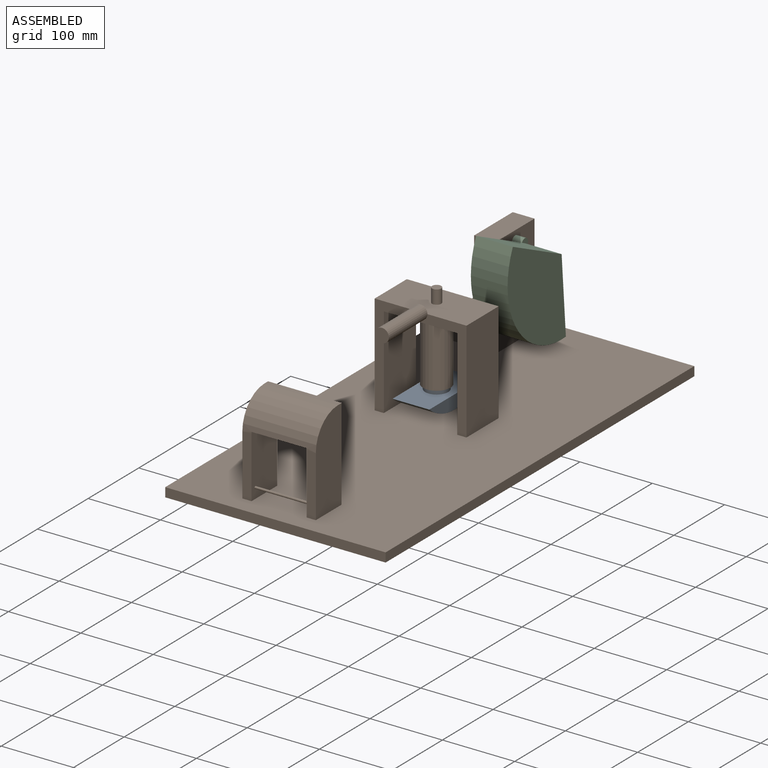
[diagram: assembled view]
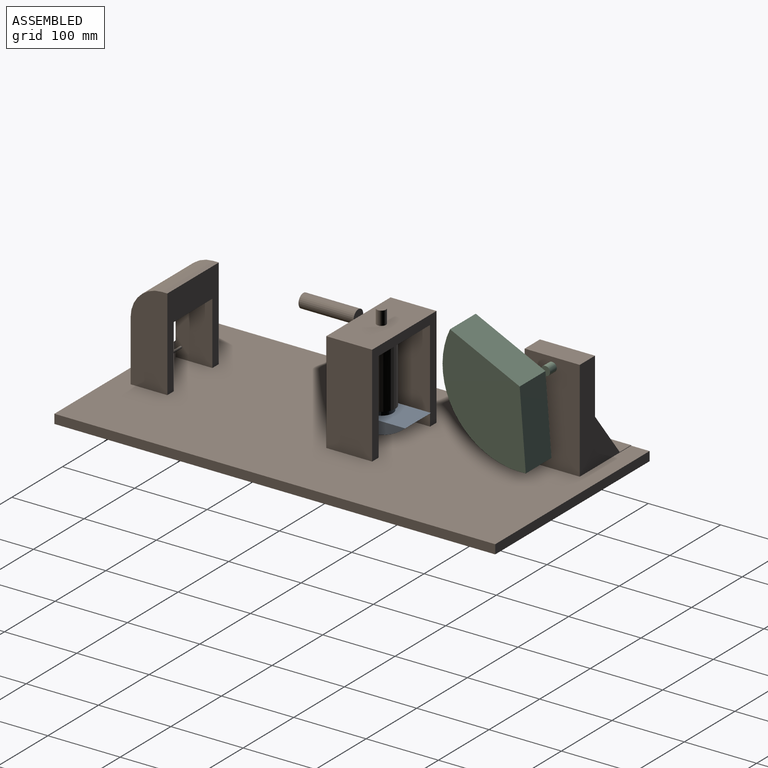
[diagram: assembled view, second angle]
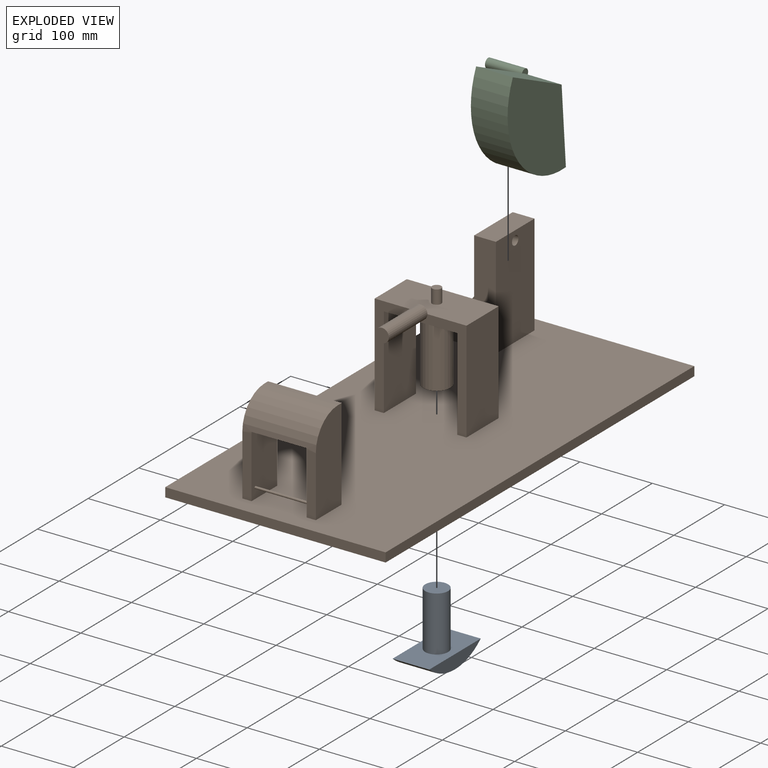
[diagram: exploded view]
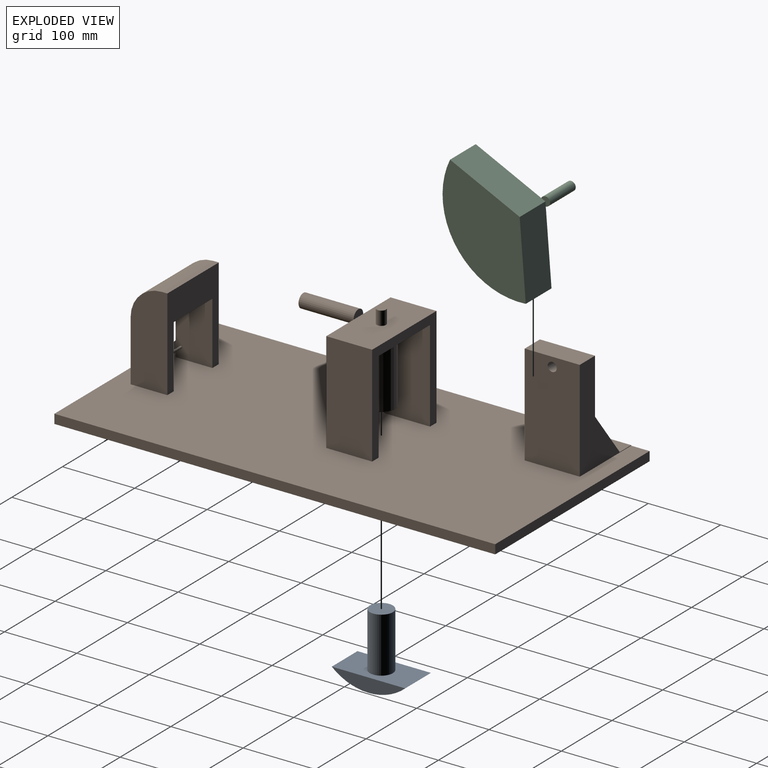
[diagram: exploded view, second angle]
ASSEMBLY  parts=3 mates=2
PART A: 6 faces, bbox 50.8x101.6x95.3 mm
  f0: cylinder r=15.88mm len=76.2mm, axis (0,0,-1), area 7600.6mm2, adj f1,f2
  f1: plane 31.75x31.75mm, normal (0,0,1), area 791.7mm2, adj f0
  f2: plane 101.6x50.8mm, normal (0,0,1), area 4369.5mm2, adj f0,f3,f4,f5
  f3: cylinder r=77.05mm len=101.6mm, axis (-1,0,0), area 5635.5mm2, adj f2,f4,f5
  f4: plane 101.6x19.12mm, normal (1,0,0), area 1330.8mm2, adj f2,f3
  f5: plane 101.6x19.12mm, normal (-1,0,0), area 1330.8mm2, adj f2,f3
PART B: 42 faces, bbox 304.8x609.6x171.5 mm
  f0: plane 139.7x127mm, normal (0,-1,0), area 4696.2mm2, adj f1,f16,f17,f18,f19,f21,f22,f39
  f1: plane 609.6x304.8mm, normal (0,0,1), area 175160.9mm2, adj f0,f2,f3,f5,f6,f7,f8,f9
  f2: plane 83.82x12.7mm, normal (0,-1,0), area 1064.5mm2, adj f1,f8,f9,f23
  f3: plane 609.6x13.35mm, normal (-1,0,0), area 7791.5mm2, adj f1,f4,f6,f7,f24,f25,f27
  f4: plane 609.6x304.8mm, normal (0,0,-1), area 185806.1mm2, adj f3,f5,f6,f7
  f5: plane 609.6x12.7mm, normal (1,0,0), area 7741.9mm2, adj f1,f4,f6,f7
  f6: plane 304.8x12.7mm, normal (0,1,0), area 3871mm2, adj f1,f3,f4,f5
  f7: plane 304.8x12.7mm, normal (0,-1,0), area 3871mm2, adj f1,f3,f4,f5
  f8: plane 86.53x50.8mm, normal (-1,0,0), area 4387.5mm2, adj f1,f2,f12,f14,f23,f41
  f9: plane 127x50.8mm, normal (1,0,0), area 6051.5mm2, adj f1,f2,f12,f15,f23
  f10: plane 127x50.8mm, normal (-1,0,0), area 6051.5mm2, adj f1,f12,f13,f15,f23
  f11: plane 86.53x50.8mm, normal (1,0,0), area 4387.5mm2, adj f1,f12,f13,f14,f23,f41
  f12: plane 127x101.6mm, normal (0,1,0), area 6309.9mm2, adj f1,f8,f9,f10,f11,f14,f15
  f13: plane 83.82x12.7mm, normal (0,-1,0), area 1064.5mm2, adj f1,f10,f11,f23
  f14: plane 76.2x50.72mm, normal (0,0,-1), area 3864.5mm2, adj f8,f11,f12,f23
  f15: plane 101.6x7.62mm, normal (0,0,1), area 774.2mm2, adj f9,f10,f12,f23
  f16: plane 139.7x63.5mm, normal (-1,0,0), area 8870.9mm2, adj f0,f1,f20,f22
  f17: plane 127x63.5mm, normal (1,0,0), area 8064.5mm2, adj f0,f1,f20,f21
  f18: plane 127x63.5mm, normal (-1,0,0), area 8064.5mm2, adj f0,f1,f20,f21
  f19: plane 139.7x63.5mm, normal (1,0,0), area 8870.9mm2, adj f0,f1,f20,f22
  f20: plane 139.7x127mm, normal (0,1,0), area 4838.7mm2, adj f1,f16,f17,f18,f19,f21,f22
  f21: plane 101.6x63.5mm, normal (0,0,-1), area 5311.5mm2, adj f0,f17,f18,f20,f33
  f22: plane 127x63.5mm, normal (0,0,1), area 7937.8mm2, adj f0,f16,f19,f20,f36,f38
  f23: cylinder r=43.18mm len=101.6mm, axis (-1,0,0), area 6684.9mm2, adj f2,f8,f9,f10,f11,f13,f14,f15
  f24: plane 139.7x101.6mm, normal (0,1,0), area 5789.9mm2, adj f1,f3,f26,f27,f28,f29,f30
  f25: plane 139.7x101.6mm, normal (0,-1,0), area 5789.9mm2, adj f1,f3,f26,f27,f28,f29,f30
  f26: plane 139.7x76.2mm, normal (1,0,0), area 10518.5mm2, adj f1,f24,f25,f28,f31
  f27: plane 76.2x22.66mm, normal (0,0,1), area 1726.7mm2, adj f3,f24,f25,f30
  f28: plane 76.2x30.13mm, normal (0,0,1), area 2296.2mm2, adj f24,f25,f26,f29
  f29: plane 76.2x76.2mm, normal (-1,0,0), area 5679.8mm2, adj f24,f25,f28,f30,f31
  f30: plane 76.2x62.85mm, normal (-0.79,0,0.61), area 6063.6mm2, adj f24,f25,f27,f29
  f31: cylinder r=6.35mm len=30.13mm, axis (1,0,0), area 1202.3mm2, adj f26,f29
  f32: cylinder r=15.88mm len=88.9mm, axis (0,0,1), area 8867.4mm2, adj f34,f35
  f33: cylinder r=19.05mm len=88.9mm, axis (0,0,1), area 10640.9mm2, adj f21,f34
  f34: plane 38.1x38.1mm, normal (0,0,-1), area 348.4mm2, adj f32,f33
  f35: plane 31.75x31.75mm, normal (0,0,-1), area 791.7mm2, adj f32
  f36: cylinder r=6.35mm len=19.05mm, axis (0,0,-1), area 760.1mm2, adj f22,f37
  f37: plane 12.7x12.7mm, normal (0,0,1), area 126.7mm2, adj f36
  f38: plane 19.05x9.53mm, normal (0,1,0), area 142.5mm2, adj f22,f39
  f39: cylinder r=9.53mm len=76.2mm, axis (0,1,0), area 4560.4mm2, adj f0,f38,f40
  f40: plane 19.05x19.05mm, normal (0,-1,0), area 285mm2, adj f39
  f41: cylinder r=1.59mm len=76.2mm, axis (1,0,0), area 760.1mm2, adj f8,f11
PART C: 8 faces, bbox 113x160x101.6 mm
  f0: cylinder r=106.68mm len=160.02mm, axis (0,0,-1), area 11350.2mm2, adj f1,f2,f3,f4
  f1: plane 106.68x50.8mm, normal (-1,0,0), area 5419.3mm2, adj f0,f2,f3,f4,f5
  f2: plane 92.39x53.34mm, normal (-0.5,-0.87,0), area 5419.3mm2, adj f0,f1,f3,f4,f5
  f3: plane 160.02x106.68mm, normal (0,0,1), area 11917.8mm2, adj f0,f1,f2
  f4: plane 160.02x106.68mm, normal (0,0,-1), area 11875.5mm2, adj f0,f1,f2,f6
  f5: plane 12.7x11.85mm, normal (0,0,1), area 84.5mm2, adj f1,f2,f6
  f6: cylinder r=6.35mm len=50.8mm, axis (0,0,1), area 2026.8mm2, adj f4,f5,f7
  f7: plane 12.7x12.7mm, normal (0,0,-1), area 126.7mm2, adj f6
PLACE A t=(190.77,244.67,96.59)mm
PLACE B t=(51.07,-91.88,51.97)mm fixed
PLACE C rot(axis=(-0.56,0.61,-0.56),117.4deg) t=(166.04,454.22,191.67)mm
MATE slider A.f0 <-> B.f32  axis (0,0,-1) through (190.77,244.67,134.69)mm
MATE cylindrical C.f0 <-> B.f31  axis (1,0,0) through (140.64,454.22,191.67)mm
